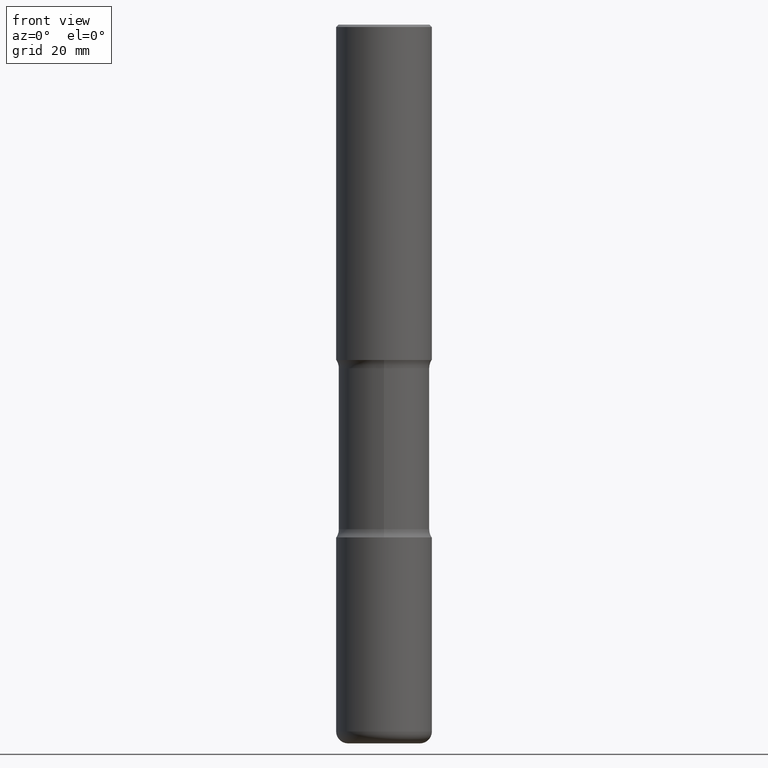
[diagram: clean part render]
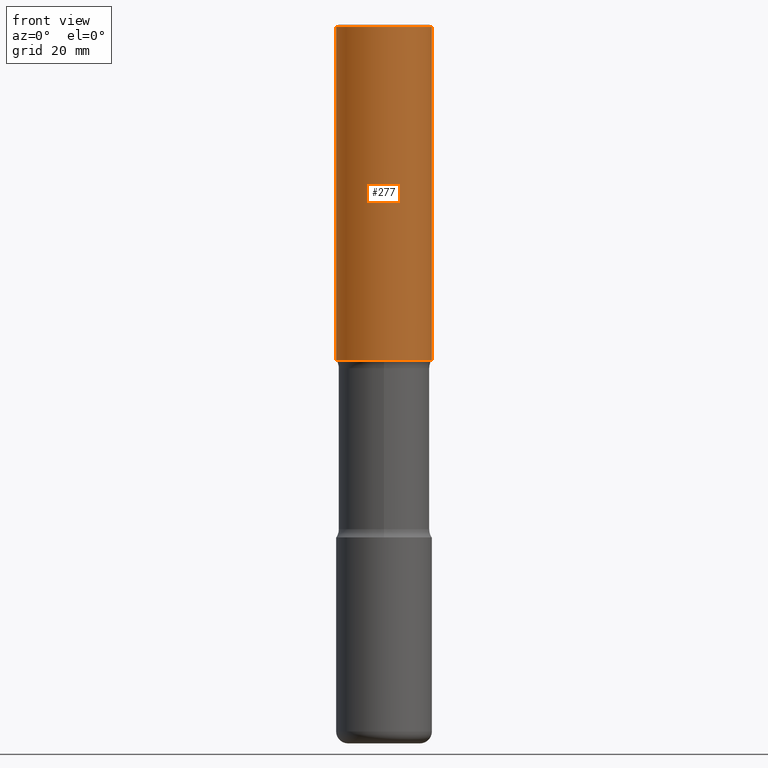
[diagram: same view with one face highlighted and labeled with its STEP entity id]
A machine part, front view. The second image highlights one B-rep face of the part: STEP entity #277.
In plain terms, the highlighted cylindrical surface (partial cylindrical patch) has radius 10 mm, axis along (-0, 0, 1).
Its self-contained STEP definition (entity closure, byte-faithful):
#32 = VERTEX_POINT ( 'NONE', #95 ) ;
#48 = CIRCLE ( 'NONE', #470, 0.3936999999999999389 ) ;
#86 = CARTESIAN_POINT ( 'NONE',  ( -0.3937000000000001054, 2.797406750687515181E-15, -1.936584745033357016E-29 ) ) ;
#95 = CARTESIAN_POINT ( 'NONE',  ( -0.3937000000000002720, -2.048594773559823141E-15, -2.755899999999998240 ) ) ;
#115 = ORIENTED_EDGE ( 'NONE', *, *, #510, .T. ) ;
#117 = CARTESIAN_POINT ( 'NONE',  ( 0.3936999999999999389, -2.770807688499514945E-15, -0.02000000000000010103 ) ) ;
#118 = LINE ( 'NONE', #86, #361 ) ;
#123 = DIRECTION ( 'NONE',  ( 1.000000000000000000, -6.982962677686265133E-15, 0.000000000000000000 ) ) ;
#158 = EDGE_LOOP ( 'NONE', ( #521, #321, #115, #554 ) ) ;
#164 = VECTOR ( 'NONE', #180, 39.37007874015748143 ) ;
#180 = DIRECTION ( 'NONE',  ( -2.445468806185136877E-29, 3.491481338843145188E-15, 1.000000000000000000 ) ) ;
#185 = CARTESIAN_POINT ( 'NONE',  ( 4.890937612370298557E-31, -6.982962677686327354E-17, -0.02000000000000010103 ) ) ;
#187 = FACE_OUTER_BOUND ( 'NONE', #158, .T. ) ;
#188 = AXIS2_PLACEMENT_3D ( 'NONE', #540, #463, #458 ) ;
#202 = CIRCLE ( 'NONE', #261, 0.3937000000000002164 ) ;
#248 = LINE ( 'NONE', #395, #164 ) ;
#254 = DIRECTION ( 'NONE',  ( 1.000000000000000000, -6.982962677686266711E-15, 0.000000000000000000 ) ) ;
#261 = AXIS2_PLACEMENT_3D ( 'NONE', #467, #422, #123 ) ;
#277 = ADVANCED_FACE ( 'NONE', ( #187 ), #539, .T. ) ;
#321 = ORIENTED_EDGE ( 'NONE', *, *, #440, .T. ) ;
#335 = EDGE_CURVE ( 'NONE', #484, #456, #48, .T. ) ;
#340 = DIRECTION ( 'NONE',  ( -2.445468806185136877E-29, 3.491481338843145188E-15, 1.000000000000000000 ) ) ;
#345 = CARTESIAN_POINT ( 'NONE',  ( -0.3936999999999999389, 2.679362779428219524E-15, -0.02000000000000010103 ) ) ;
#361 = VECTOR ( 'NONE', #340, 39.37007874015748143 ) ;
#378 = CARTESIAN_POINT ( 'NONE',  ( 0.3937000000000002164, -1.237136582792290287E-14, -2.755899999999998240 ) ) ;
#395 = CARTESIAN_POINT ( 'NONE',  ( 0.3937000000000001054, -2.749192406205084005E-15, 1.919750796630860452E-29 ) ) ;
#406 = DIRECTION ( 'NONE',  ( -2.445468806185136597E-29, 3.491481338843145583E-15, 1.000000000000000000 ) ) ;
#421 = EDGE_CURVE ( 'NONE', #32, #484, #118, .T. ) ;
#422 = DIRECTION ( 'NONE',  ( -2.445468806185136597E-29, 3.491481338843145583E-15, 1.000000000000000000 ) ) ;
#426 = VERTEX_POINT ( 'NONE', #378 ) ;
#440 = EDGE_CURVE ( 'NONE', #32, #426, #202, .T. ) ;
#456 = VERTEX_POINT ( 'NONE', #117 ) ;
#458 = DIRECTION ( 'NONE',  ( 1.000000000000000000, -6.982962677686266711E-15, 4.876176775795935793E-29 ) ) ;
#463 = DIRECTION ( 'NONE',  ( -2.445468806185136597E-29, 3.491481338843145583E-15, 1.000000000000000000 ) ) ;
#467 = CARTESIAN_POINT ( 'NONE',  ( 6.739467482965614869E-29, -9.622173421717819657E-15, -2.755899999999998240 ) ) ;
#470 = AXIS2_PLACEMENT_3D ( 'NONE', #185, #406, #254 ) ;
#484 = VERTEX_POINT ( 'NONE', #345 ) ;
#510 = EDGE_CURVE ( 'NONE', #426, #456, #248, .T. ) ;
#521 = ORIENTED_EDGE ( 'NONE', *, *, #421, .F. ) ;
#539 = CYLINDRICAL_SURFACE ( 'NONE', #188, 0.3937000000000001054 ) ;
#540 = CARTESIAN_POINT ( 'NONE',  ( 0.000000000000000000, 0.000000000000000000, 0.000000000000000000 ) ) ;
#554 = ORIENTED_EDGE ( 'NONE', *, *, #335, .F. ) ;